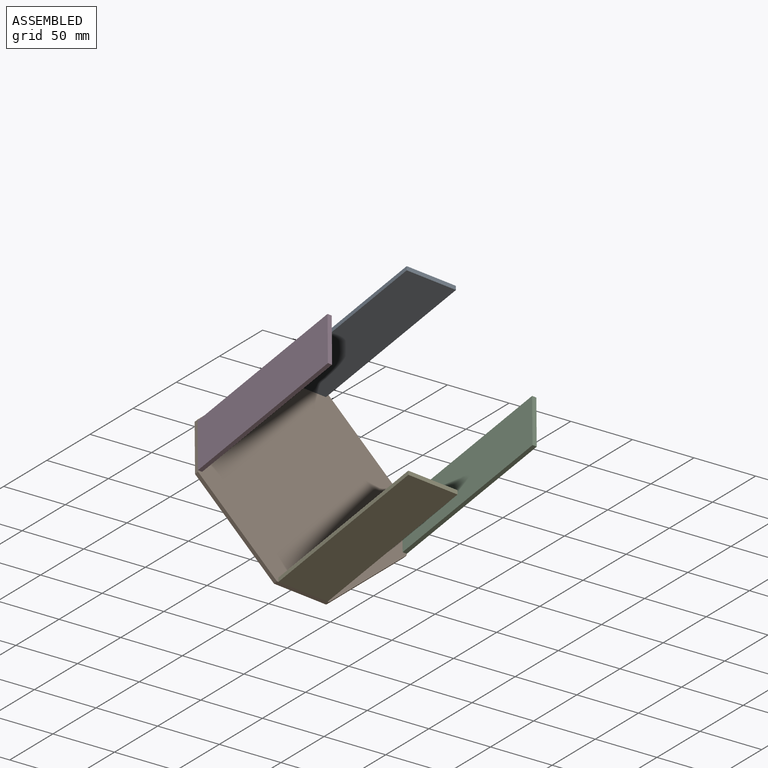
[diagram: assembled view]
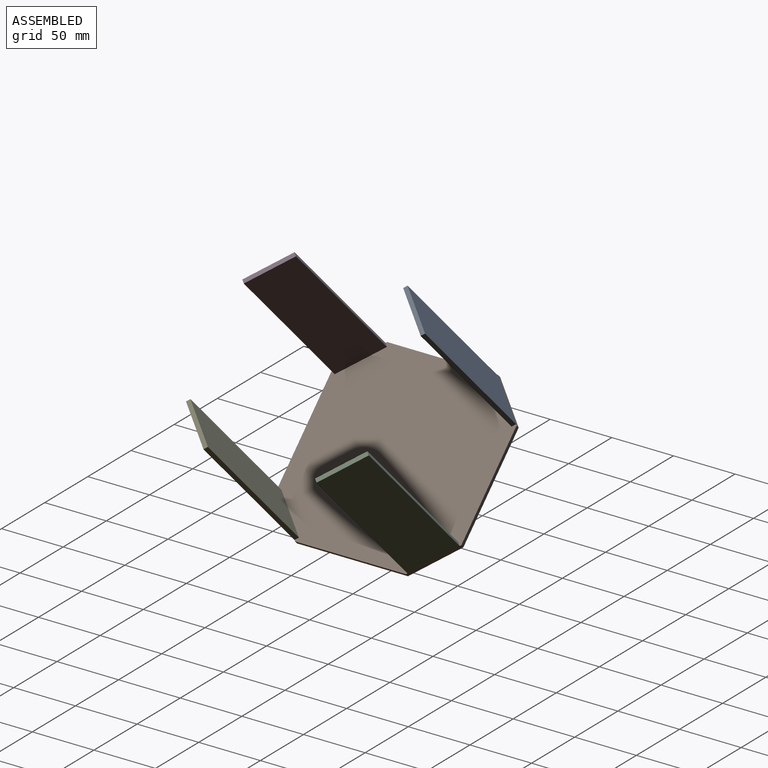
[diagram: assembled view, second angle]
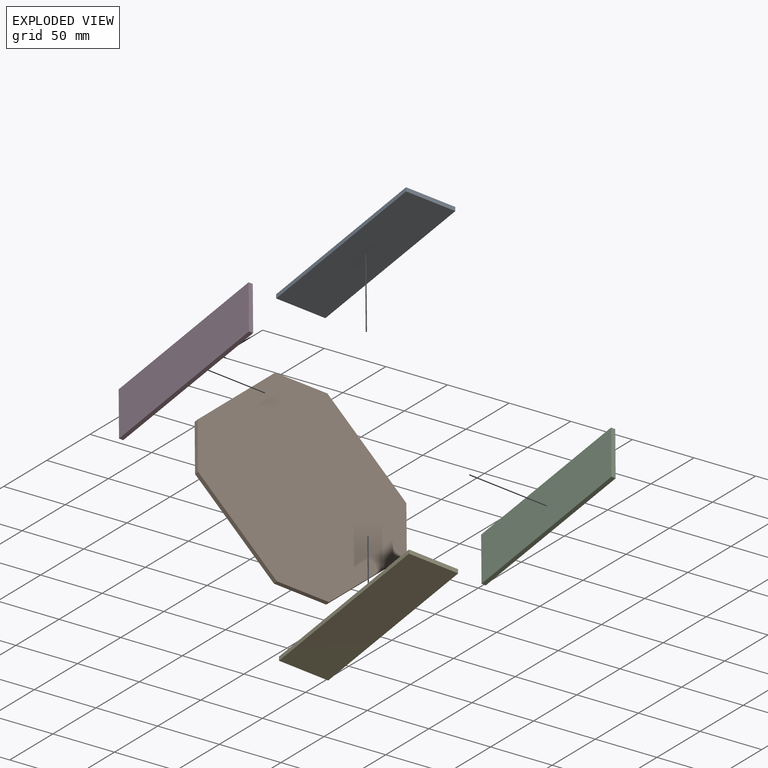
[diagram: exploded view]
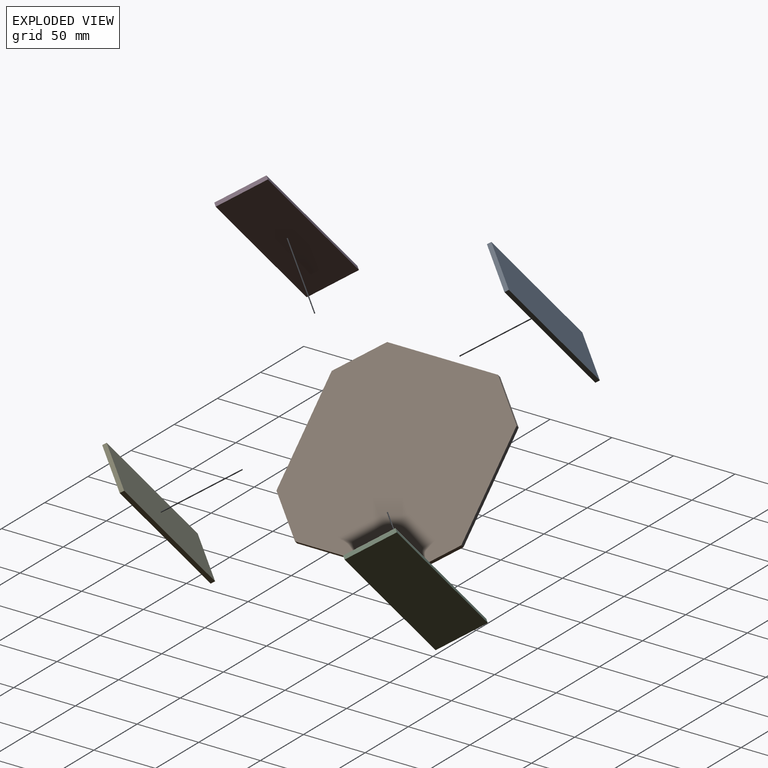
[diagram: exploded view, second angle]
ASSEMBLY  parts=5 mates=4
PART A: 6 faces, bbox 40x150x3.4 mm
  f0: plane 150x3.4mm, normal (-1,0,0), area 510mm2, adj f1,f3,f4,f5
  f1: plane 40x3.4mm, normal (0,-1,0), area 136mm2, adj f0,f2,f4,f5
  f2: plane 150x3.4mm, normal (1,0,0), area 510mm2, adj f1,f3,f4,f5
  f3: plane 40x3.4mm, normal (0,1,0), area 136mm2, adj f0,f2,f4,f5
  f4: plane 150x40mm, normal (0,0,1), area 6000mm2, adj f0,f1,f2,f3
  f5: plane 150x40mm, normal (0,0,-1), area 6000mm2, adj f0,f1,f2,f3
PART B: 10 faces, bbox 150x150x3.4 mm
  f0: plane 90x3.4mm, normal (0,-1,0), area 306mm2, adj f4,f5,f6,f7
  f1: plane 90x3.4mm, normal (1,0,0), area 306mm2, adj f4,f5,f7,f8
  f2: plane 90x3.4mm, normal (0,1,0), area 306mm2, adj f4,f5,f8,f9
  f3: plane 90x3.4mm, normal (-1,0,0), area 306mm2, adj f4,f5,f6,f9
  f4: plane 150x150mm, normal (0,0,1), area 20700mm2, adj f0,f1,f2,f3,f6,f7,f8,f9
  f5: plane 150x150mm, normal (0,0,-1), area 20700mm2, adj f0,f1,f2,f3,f6,f7,f8,f9
  f6: plane 30x30mm, normal (-0.71,-0.71,0), area 144.2mm2, adj f0,f3,f4,f5
  f7: plane 30x30mm, normal (0.71,-0.71,0), area 144.2mm2, adj f0,f1,f4,f5
  f8: plane 30x30mm, normal (0.71,0.71,0), area 144.2mm2, adj f1,f2,f4,f5
  f9: plane 30x30mm, normal (-0.71,0.71,0), area 144.2mm2, adj f2,f3,f4,f5
PART C: same geometry as A
PART D: same geometry as A
PART E: same geometry as A
PLACE A rot(axis=(0.82,0.58,0),119.8deg) t=(-111.2,75.38,100.68)mm
PLACE B rot(axis=(0,1,0),44.7deg) t=(-7.49,-45.47,-6.55)mm
PLACE C rot(axis=(0.71,0,-0.7),90deg) t=(-25.83,103.67,16.35)mm
PLACE D rot(axis=(0.71,0,-0.7),90deg) t=(-109.49,-13.93,98.99)mm
PLACE E rot(axis=(0.82,0.58,0),119.8deg) t=(-27.54,-42.21,18.04)mm
MATE fastened E.f4 <-> B.f7  axis (0.5,-0.71,-0.5) through (-15.77,-30.47,6.41)mm
MATE fastened C.f5 <-> B.f8  axis (0.5,0.71,-0.5) through (-15.77,89.53,6.41)mm
MATE fastened A.f5 <-> B.f9  axis (-0.5,0.71,0.5) through (-101.14,89.53,90.74)mm
MATE fastened D.f4 <-> B.f6  axis (-0.5,-0.71,0.5) through (-101.14,-30.47,90.74)mm
